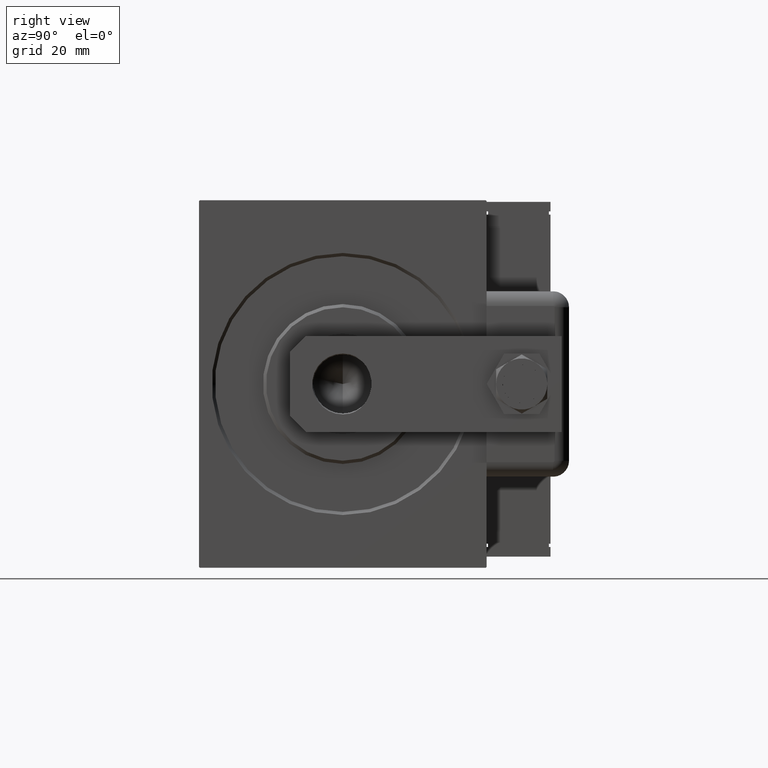
[diagram: clean part render]
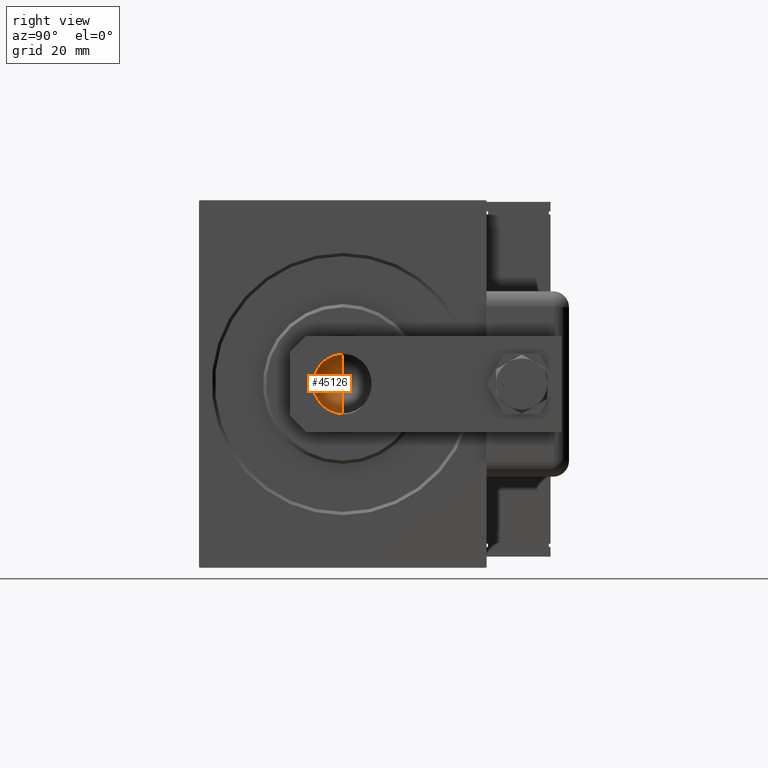
[diagram: same view with one face highlighted and labeled with its STEP entity id]
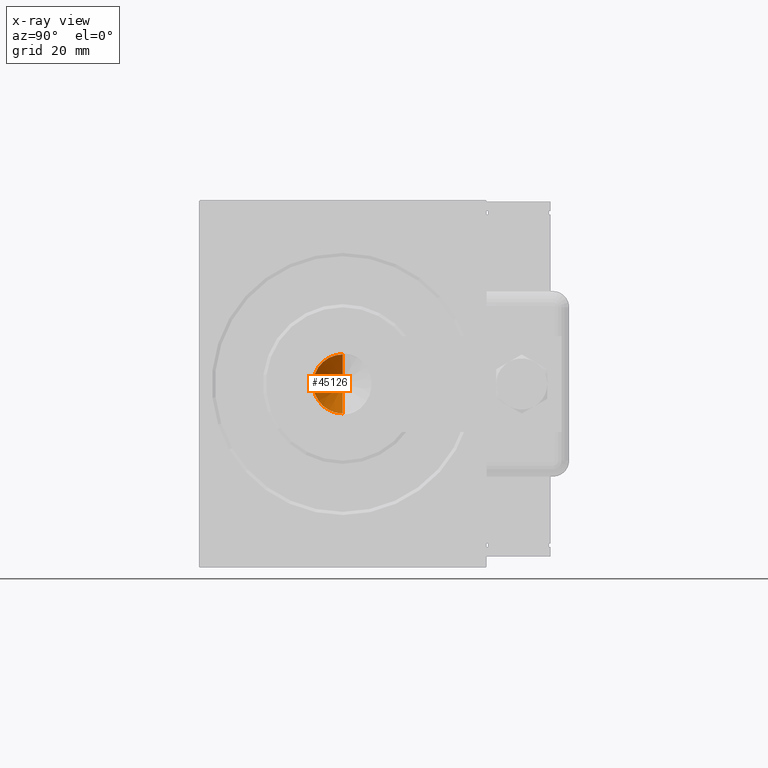
[diagram: x-ray of the same camera — body ghosted, the highlighted face saturated]
A machine part, right view. The second image highlights one B-rep face of the part: STEP entity #45126.
The next image is the same camera in x-ray: the body ghosted, the highlighted face saturated — about 0% of this face is hidden behind the body in this view.
In plain terms, the highlighted conical surface has half-angle 59 deg.
Its self-contained STEP definition (entity closure, byte-faithful):
#487 = EDGE_CURVE ( 'NONE', #56478, #56125, #46662, .T. ) ;
#1635 = AXIS2_PLACEMENT_3D ( 'NONE', #15852, #20591, #38696 ) ;
#2485 = FACE_OUTER_BOUND ( 'NONE', #16110, .T. ) ;
#7678 = ORIENTED_EDGE ( 'NONE', *, *, #487, .T. ) ;
#9255 = VERTEX_POINT ( 'NONE', #38695 ) ;
#11155 = VECTOR ( 'NONE', #39231, 1000.000000000000000 ) ;
#12177 = VECTOR ( 'NONE', #55138, 1000.000000000000000 ) ;
#15852 = CARTESIAN_POINT ( 'NONE',  ( 0.000000000000000000, 0.000000000000000000, 79.00000000000001421 ) ) ;
#16110 = EDGE_LOOP ( 'NONE', ( #30865, #7678, #44511 ) ) ;
#17988 = DIRECTION ( 'NONE',  ( 1.000000000000000000, 0.000000000000000000, 0.000000000000000000 ) ) ;
#19149 = CARTESIAN_POINT ( 'NONE',  ( 0.000000000000000000, 0.000000000000000000, 79.00000000000001421 ) ) ;
#19492 = LINE ( 'NONE', #36718, #12177 ) ;
#19652 = CONICAL_SURFACE ( 'NONE', #1635, 9.249999999999994671, 1.029744258676652535 ) ;
#20591 = DIRECTION ( 'NONE',  ( -0.000000000000000000, -0.000000000000000000, 1.000000000000000000 ) ) ;
#24312 = CIRCLE ( 'NONE', #27153, 9.249999999999994671 ) ;
#27153 = AXIS2_PLACEMENT_3D ( 'NONE', #19149, #27768, #17988 ) ;
#27768 = DIRECTION ( 'NONE',  ( -0.000000000000000000, -0.000000000000000000, 1.000000000000000000 ) ) ;
#30865 = ORIENTED_EDGE ( 'NONE', *, *, #46885, .F. ) ;
#36718 = CARTESIAN_POINT ( 'NONE',  ( 9.249999999999994671, 0.000000000000000000, 79.00000000000001421 ) ) ;
#37652 = CARTESIAN_POINT ( 'NONE',  ( -6.793016015247754405E-15, 0.000000000000000000, 73.44203927399506426 ) ) ;
#38057 = CARTESIAN_POINT ( 'NONE',  ( -9.249999999999994671, 1.132798289211300909E-15, 79.00000000000001421 ) ) ;
#38695 = CARTESIAN_POINT ( 'NONE',  ( 9.249999999999994671, 0.000000000000000000, 79.00000000000001421 ) ) ;
#38696 = DIRECTION ( 'NONE',  ( 1.000000000000000000, 0.000000000000000000, 0.000000000000000000 ) ) ;
#39231 = DIRECTION ( 'NONE',  ( -0.8571673007021113344, 1.049727191138617463E-16, 0.5150380749100558209 ) ) ;
#44511 = ORIENTED_EDGE ( 'NONE', *, *, #54156, .T. ) ;
#45126 = ADVANCED_FACE ( 'NONE', ( #2485 ), #19652, .F. ) ;
#46662 = LINE ( 'NONE', #38057, #11155 ) ;
#46885 = EDGE_CURVE ( 'NONE', #56478, #9255, #19492, .T. ) ;
#54156 = EDGE_CURVE ( 'NONE', #56125, #9255, #24312, .T. ) ;
#55138 = DIRECTION ( 'NONE',  ( 0.8571673007021113344, 0.000000000000000000, 0.5150380749100558209 ) ) ;
#56125 = VERTEX_POINT ( 'NONE', #57664 ) ;
#56478 = VERTEX_POINT ( 'NONE', #37652 ) ;
#57664 = CARTESIAN_POINT ( 'NONE',  ( -9.249999999999994671, 1.132798289211300909E-15, 79.00000000000001421 ) ) ;